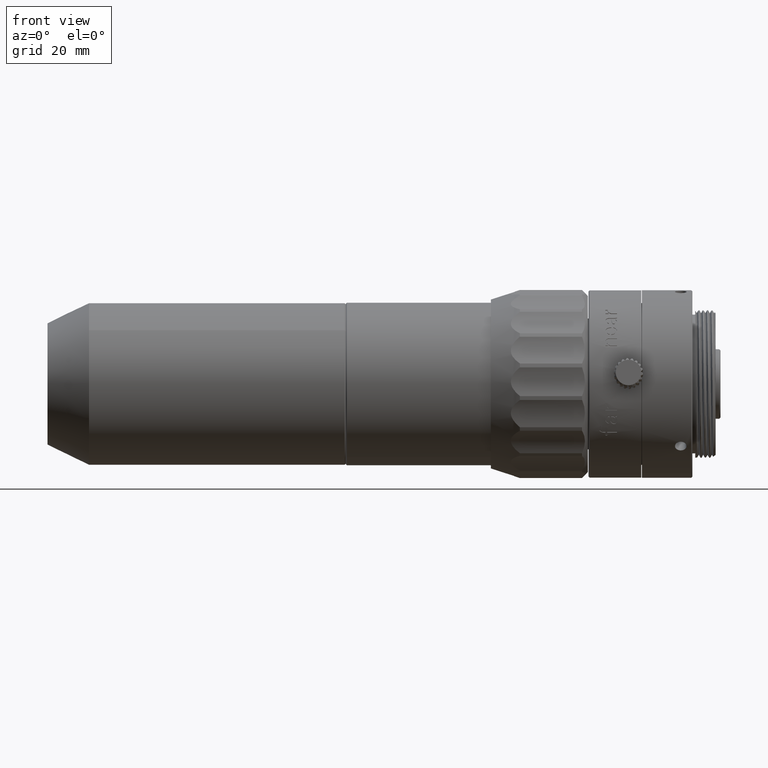
[diagram: clean part render]
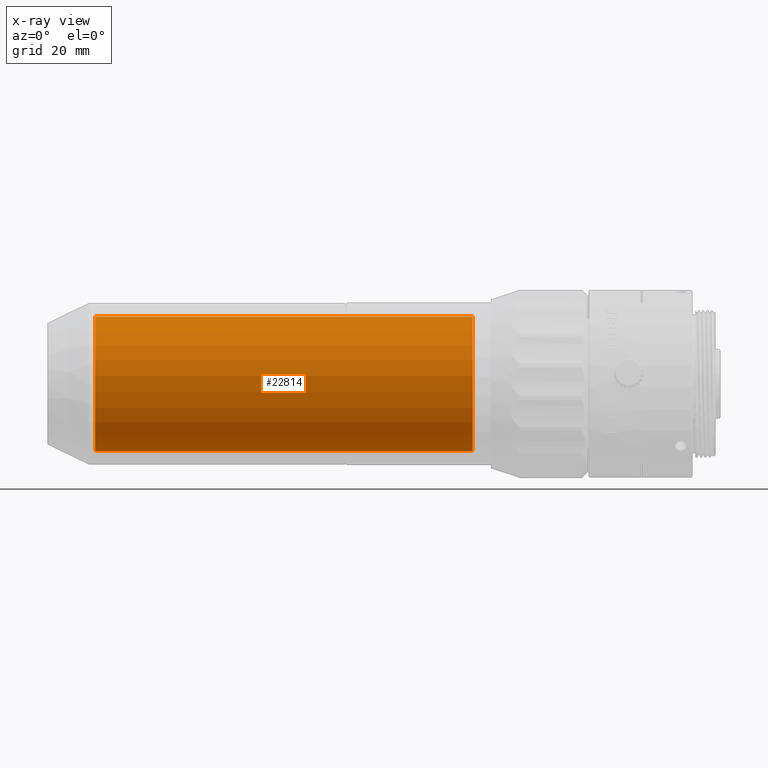
[diagram: x-ray — body ghosted, one internal face saturated and labeled with its STEP entity id]
A machine part, front view, then the same camera in x-ray: the body is ghosted and one INTERNAL B-rep face — a face not visible from any outside direction — is saturated and labeled: STEP entity #22814.
In plain terms, the highlighted cylindrical surface (bore or boss wall) has radius 11.6 mm, axis along (-1, -0, -0).
Its self-contained STEP definition (entity closure, byte-faithful):
#168 = CIRCLE ( 'NONE', #14878, 11.60000000000019327 ) ;
#1796 = CYLINDRICAL_SURFACE ( 'NONE', #2563, 11.60000000000019327 ) ;
#2563 = AXIS2_PLACEMENT_3D ( 'NONE', #9404, #5522, #13127 ) ;
#3056 = CIRCLE ( 'NONE', #17004, 11.60000000000019327 ) ;
#3134 = DIRECTION ( 'NONE',  ( 0.000000000000000000, 0.000000000000000000, 1.000000000000000000 ) ) ;
#3788 = ORIENTED_EDGE ( 'NONE', *, *, #5105, .T. ) ;
#5105 = EDGE_CURVE ( 'NONE', #10673, #10673, #3056, .T. ) ;
#5522 = DIRECTION ( 'NONE',  ( -1.000000000000000000, -0.000000000000000000, -0.000000000000000000 ) ) ;
#9016 = DIRECTION ( 'NONE',  ( 0.000000000000000000, 0.000000000000000000, 1.000000000000000000 ) ) ;
#9404 = CARTESIAN_POINT ( 'NONE',  ( -44.39947392241583657, -1.265596703952543534, 73.43615199999769061 ) ) ;
#10167 = EDGE_LOOP ( 'NONE', ( #22579 ) ) ;
#10673 = VERTEX_POINT ( 'NONE', #18269 ) ;
#13029 = EDGE_CURVE ( 'NONE', #13770, #13770, #168, .T. ) ;
#13127 = DIRECTION ( 'NONE',  ( 0.000000000000000000, 0.000000000000000000, 1.000000000000000000 ) ) ;
#13232 = DIRECTION ( 'NONE',  ( -1.000000000000000000, -0.000000000000000000, -0.000000000000000000 ) ) ;
#13770 = VERTEX_POINT ( 'NONE', #17639 ) ;
#14878 = AXIS2_PLACEMENT_3D ( 'NONE', #22704, #13232, #9016 ) ;
#15005 = FACE_OUTER_BOUND ( 'NONE', #18621, .T. ) ;
#17004 = AXIS2_PLACEMENT_3D ( 'NONE', #21951, #22212, #3134 ) ;
#17639 = CARTESIAN_POINT ( 'NONE',  ( 17.62673007757964427, -1.265596703952543534, 85.03615199999788388 ) ) ;
#18269 = CARTESIAN_POINT ( 'NONE',  ( -47.40942192242350472, -1.265596703952543534, 85.03615199999788388 ) ) ;
#18609 = FACE_OUTER_BOUND ( 'NONE', #10167, .T. ) ;
#18621 = EDGE_LOOP ( 'NONE', ( #3788 ) ) ;
#21951 = CARTESIAN_POINT ( 'NONE',  ( -47.40942192242350472, -1.265596703952543534, 73.43615199999769061 ) ) ;
#22212 = DIRECTION ( 'NONE',  ( 1.000000000000000000, 0.000000000000000000, 0.000000000000000000 ) ) ;
#22579 = ORIENTED_EDGE ( 'NONE', *, *, #13029, .T. ) ;
#22704 = CARTESIAN_POINT ( 'NONE',  ( 17.62673007757964427, -1.265596703952543534, 73.43615199999769061 ) ) ;
#22814 = ADVANCED_FACE ( 'NONE', ( #15005, #18609 ), #1796, .T. ) ;